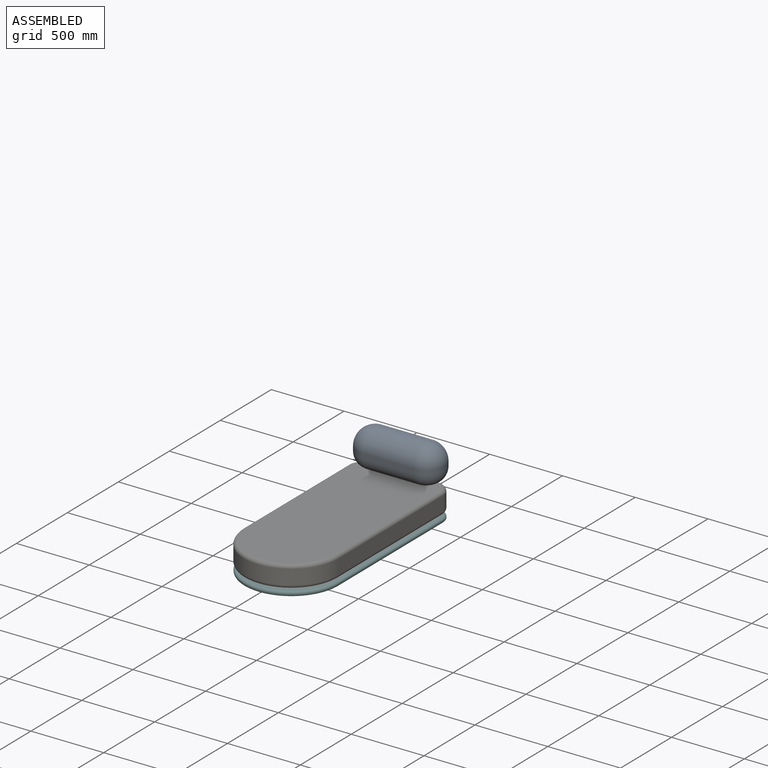
[diagram: assembled view]
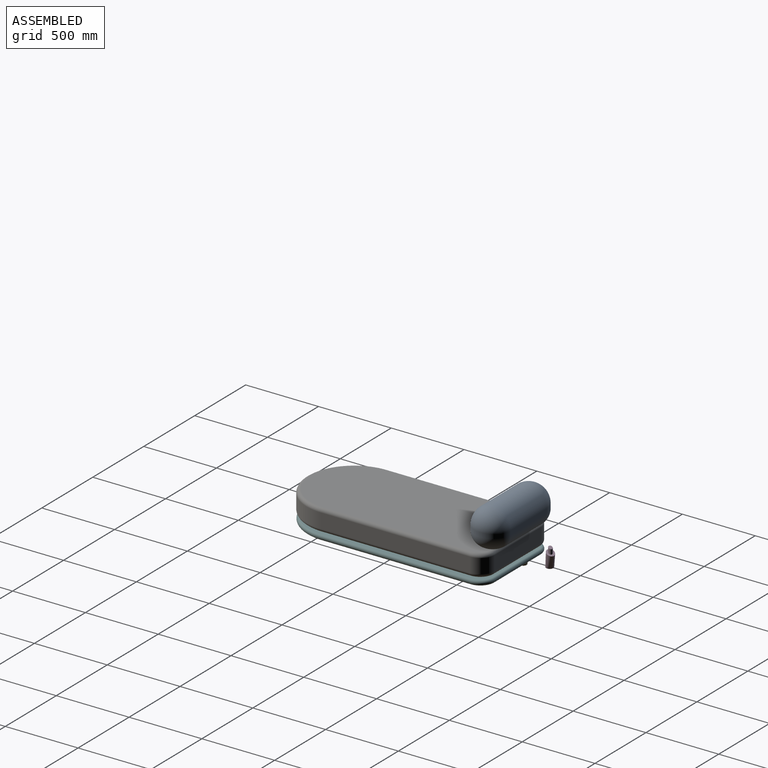
[diagram: assembled view, second angle]
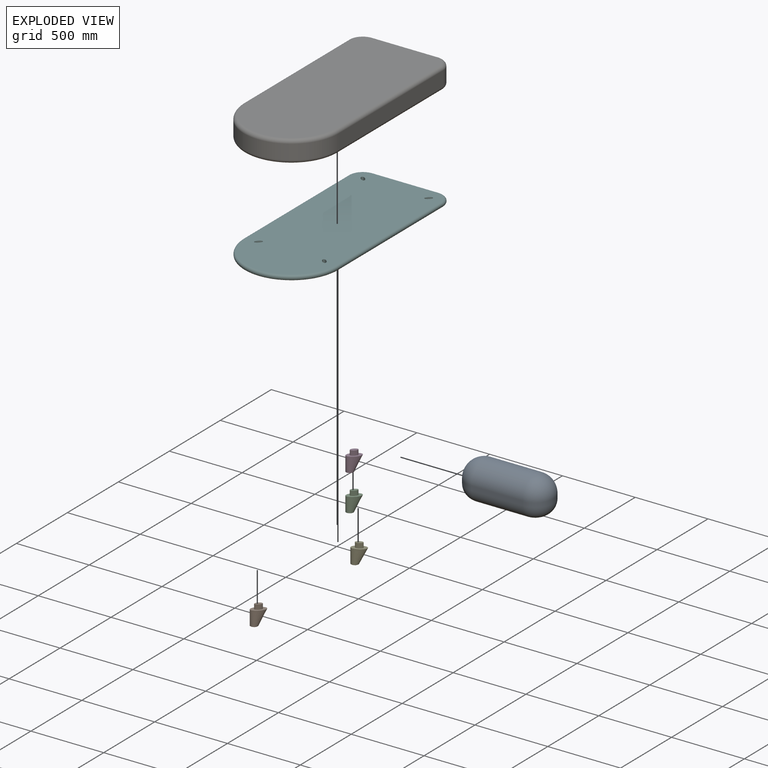
[diagram: exploded view]
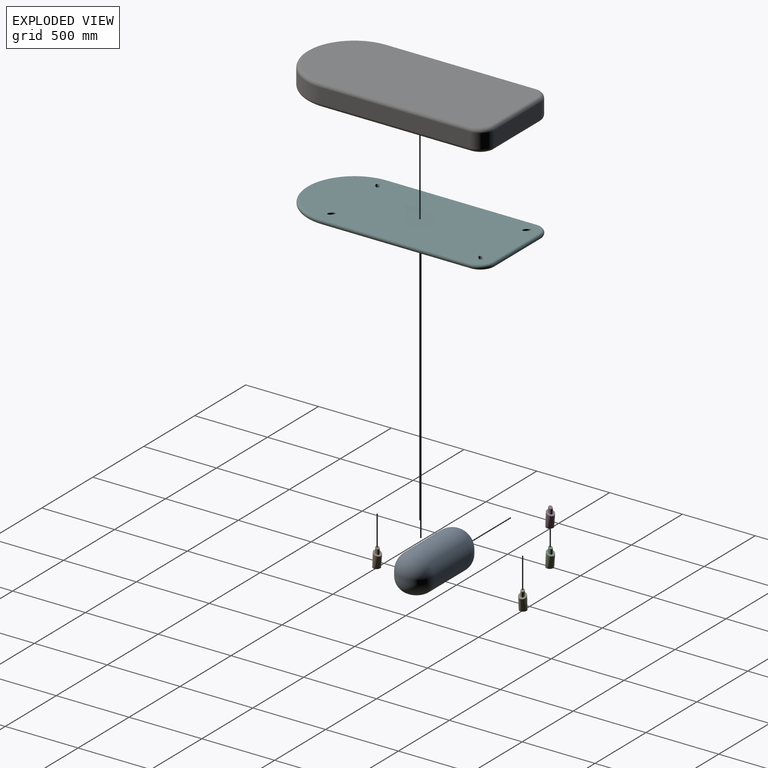
[diagram: exploded view, second angle]
FCSTD DOCUMENT  (FreeCAD 1.0R39319 (Git))
Label: Lounger Unit
License: All rights reserved
objects: App::Link×7, App::FeaturePython×7, Assembly::JointGroup×1, Assembly::AssemblyObject×1
EXTERNAL_REF file=Components.FCStd obj=Body006
EXTERNAL_REF file=Components.FCStd obj=Body007
EXTERNAL_REF file=Components.FCStd obj=Body002
EXTERNAL_REF file=Components.FCStd obj=Body003

FEATURE [App::Link] LoungerBase
  LinkedObject = -> <external Components.FCStd>#Body006
FEATURE [App::FeaturePython] GroundedJoint  label="BaseJoint"  # Assembly grounded joint (typed FeaturePython)
  ObjectToGround = -> LoungerBase
FEATURE [App::Link] LoungerCushion
  LinkPlacement = pos=(0,-1.31383,50) rot=(0,0,1;0rad)
  LinkedObject = -> <external Components.FCStd>#Body007
  Placement = pos=(0,-1.31383,50) rot=(0,0,1;0rad)
FEATURE [App::Link] Backrest
  LinkPlacement = pos=(26,73.6862,200) rot=(0,0,1;0rad)
  LinkedObject = -> <external Components.FCStd>#Body002
  Placement = pos=(26,73.6862,200) rot=(0,0,1;0rad)
FEATURE [App::Link] Legs
  LinkPlacement = pos=(100,-1124,-1.42e-14) rot=(0,0,1;0rad)
  LinkedObject = -> <external Components.FCStd>#Body003
  Placement = pos=(100,-1124,-1.42e-14) rot=(0,0,1;0rad)
FEATURE [App::Link] Legs001
  LinkPlacement = pos=(-17.6777,-17.6777,-33) rot=(0,0,1;0rad)
  LinkedObject = -> <external Components.FCStd>#Body003
  Placement = pos=(-17.6777,-17.6777,-33) rot=(0,0,1;0rad)
FEATURE [App::Link] Legs002
  LinkPlacement = pos=(-17.6777,-17.6777,-33) rot=(0,0,1;0rad)
  LinkedObject = -> <external Components.FCStd>#Body003
  Placement = pos=(-17.6777,-17.6777,-33) rot=(0,0,1;0rad)
FEATURE [App::Link] Legs003
  LinkPlacement = pos=(95.8122,-129.798,-1.75e-14) rot=(0,0,-1;0.279253rad)
  LinkedObject = -> <external Components.FCStd>#Body003
  Placement = pos=(95.8122,-129.798,-1.75e-14) rot=(0,0,-1;0.279253rad)
FEATURE [App::FeaturePython] Joint  label="CushionJoint"  # Assembly joint (typed FeaturePython)
  Activated = true
  AngleMax = 0
  AngleMin = 0
  Detach1 = false
  Detach2 = false
  Distance = 0
  Distance2 = 0
  EnableAngleMax = false
  EnableAngleMin = false
  EnableLengthMax = false
  EnableLengthMin = false
  JointType = 0 (Fixed)
  LengthMax = 0
  LengthMin = 0
  Placement2 = pos=(0,1.31383,-50) rot=(0,0,1;0rad)
  Reference1 = -> Assembly [LoungerBase.?Face11,LoungerBase.?Face11]
  Reference2 = -> Assembly [LoungerCushion.?Face7,LoungerCushion.?Face7]
FEATURE [App::FeaturePython] Joint001  label="BackrestJoint"  # Assembly joint (typed FeaturePython)
  Activated = true
  AngleMax = 0
  AngleMin = 0
  Detach1 = false
  Detach2 = false
  Distance = 0
  Distance2 = 0
  EnableAngleMax = false
  EnableAngleMin = false
  EnableLengthMax = false
  EnableLengthMin = false
  JointType = 0 (Fixed)
  LengthMax = 0
  LengthMin = 0
  Offset2 = pos=(0,0,0) rot=(0,0,1;3.14159rad)
  Placement1 = pos=(326,-25,150) rot=(-0.707107,0,0.707107;3.14159rad)
  Placement2 = pos=(300,-100,5.68e-14) rot=(0,-1,0;4.71239rad)
  Reference1 = -> Assembly [LoungerCushion.Edge30,LoungerCushion.Edge30]
  Reference2 = -> Assembly [Backrest.Edge1,Backrest.Edge1]
FEATURE [App::FeaturePython] Joint002  label="Fixed"  # Assembly joint (typed FeaturePython)
  Activated = true
  AngleMax = 0
  AngleMin = 0
  Detach1 = false
  Detach2 = false
  Distance = 0
  Distance2 = 0
  EnableAngleMax = false
  EnableAngleMin = false
  EnableLengthMax = false
  EnableLengthMin = false
  JointType = 0 (Fixed)
  LengthMax = 0
  LengthMin = 0
  Placement1 = pos=(117.678,-117.678,33) rot=(0,0,1;0rad)
  Placement2 = pos=(17.6777,17.6777,33) rot=(0,0,1;0.279253rad)
  Reference1 = -> Assembly [LoungerBase.Edge39,LoungerBase.Vertex29]
  Reference2 = -> Assembly [Legs003.Edge9,Legs003.Vertex6]
FEATURE [App::FeaturePython] Joint003  label="Fixed001"  # Assembly joint (typed FeaturePython)
  Activated = true
  AngleMax = 0
  AngleMin = 0
  Detach1 = false
  Detach2 = false
  Distance = 0
  Distance2 = 0
  EnableAngleMax = false
  EnableAngleMin = false
  EnableLengthMax = false
  EnableLengthMin = false
  JointType = 0 (Fixed)
  LengthMax = 0
  LengthMin = 0
  Placement2 = pos=(17.6777,17.6777,33) rot=(0,0,1;0rad)
  Reference1 = -> Assembly [LoungerBase.?Edge40,LoungerBase.?Vertex30]
  Reference2 = -> Assembly [Legs002.Edge9,Legs002.Vertex6]
FEATURE [App::FeaturePython] Joint004  label="Fixed002"  # Assembly joint (typed FeaturePython)
  Activated = true
  AngleMax = 0
  AngleMin = 0
  Detach1 = false
  Detach2 = false
  Distance = 0
  Distance2 = 0
  EnableAngleMax = false
  EnableAngleMin = false
  EnableLengthMax = false
  EnableLengthMin = false
  JointType = 0 (Fixed)
  LengthMax = 0
  LengthMin = 0
  Placement2 = pos=(17.6777,17.6777,33) rot=(0,0,1;0rad)
  Reference1 = -> Assembly [LoungerBase.?Edge38,LoungerBase.?Vertex28]
  Reference2 = -> Assembly [Legs001.Edge9,Legs001.Vertex6]
FEATURE [App::FeaturePython] Joint005  label="Fixed003"  # Assembly joint (typed FeaturePython)
  Activated = true
  AngleMax = 0
  AngleMin = 0
  Detach1 = false
  Detach2 = false
  Distance = 0
  Distance2 = 0
  EnableAngleMax = false
  EnableAngleMin = false
  EnableLengthMax = false
  EnableLengthMin = false
  JointType = 0 (Fixed)
  LengthMax = 0
  LengthMin = 0
  Placement1 = pos=(117.678,-1106.32,33) rot=(0,0,1;0rad)
  Placement2 = pos=(17.6777,17.6777,33) rot=(0,0,1;0rad)
  Reference1 = -> Assembly [LoungerBase.Edge37,LoungerBase.Vertex27]
  Reference2 = -> Assembly [Legs.Edge9,Legs.Vertex6]
FEATURE [Assembly::JointGroup] Joints
  Group = -> [GroundedJoint,Joint,Joint001,Joint002,Joint003,Joint004,Joint005]
FEATURE [Assembly::AssemblyObject] Assembly
  Group = -> [Joints,LoungerBase,GroundedJoint,LoungerCushion,Backrest,Legs,Legs001,Legs002,Legs003,Joint,Joint001,Joint002,Joint003,Joint004,Joint005]
  Origin = -> Origin
  Type = Assembly

RESOLVED EXTERNAL PARTS (link-assembly join: the EXTERNAL_REF files above that resolve inside this repo's crawl, each included once):
---- part Components.FCStd = doc fcstd_bfc9eb12b56d ----
FCSTD DOCUMENT  (FreeCAD 1.0R39319 (Git))
Label: Components
License: All rights reserved
objects: Sketcher::SketchObject×17, PartDesign::Pad×12, PartDesign::Body×10, PartDesign::Fillet×7, PartDesign::Pocket×3, PartDesign::Plane×1, App::VarSet×1, PartDesign::AdditiveLoft×1, PartDesign::SubShapeBinder×1
note: 115 computed .brp shape members not serialized (recipe doc carries the construction recipe); baked Part::Feature solids carry a one-line shape summary decoded from their .brp

FEATURE [Sketcher::SketchObject] Sketch
  ArcFitTolerance = 1e-06
  AttachmentSupport = -> [XY_Plane]
  FullyConstrained = true
  MakeInternals = false
  MapMode = 5
  expr: Constraints[21] = VarSet.depth - 2 * VarSet.corner_radious
  expr: Constraints[22] = VarSet.depth - 2 * VarSet.corner_radious
  expr: Constraints[23] = VarSet.singe_width / 2
  expr: Constraints[24] = VarSet.singe_width / 2
  expr: Constraints[27] = VarSet.depth
  expr: Constraints[41] = VarSet.corner_radious
  sketch-geometry (15):
    g0: ArcOfCircle CenterX=1322.94 CenterY=-100 CenterZ=0 NormalX=0 NormalY=0 NormalZ=1 AngleXU=0 Radius=100 StartAngle=1e-16 EndAngle=1.5708
    g1: LineSegment StartX=1422.94 StartY=-100 StartZ=0 EndX=1422.94 EndY=-625 EndZ=0
    g2: ArcOfCircle CenterX=1322.94 CenterY=-625 CenterZ=0 NormalX=0 NormalY=0 NormalZ=1 AngleXU=0 Radius=100 StartAngle=4.71239 EndAngle=6.28319
    g3: LineSegment StartX=1322.94 StartY=-725 StartZ=0 EndX=996.938 EndY=-725 EndZ=0
    g4: ArcOfCircle CenterX=996.938 CenterY=-825 CenterZ=0 NormalX=0 NormalY=0 NormalZ=1 AngleXU=0 Radius=100 StartAngle=1.5708 EndAngle=2.35619
    g5: LineSegment StartX=926.227 StartY=-754.289 StartZ=0 EndX=695.711 EndY=-984.806 EndZ=0
    g6: ArcOfCircle CenterX=625 CenterY=-914.095 CenterZ=0 NormalX=0 NormalY=0 NormalZ=1 AngleXU=0 Radius=100 StartAngle=4.71239 EndAngle=5.49779
    g7: ArcOfCircle CenterX=100 CenterY=-696.633 CenterZ=0 NormalX=0 NormalY=0 NormalZ=1 AngleXU=0 Radius=100 StartAngle=2.35619 EndAngle=3.14159
    g8: LineSegment StartX=29.2893 StartY=-625.923 StartZ=0 EndX=625.923 EndY=-29.2893 EndZ=0
    g9: ArcOfCircle CenterX=696.633 CenterY=-100 CenterZ=0 NormalX=0 NormalY=0 NormalZ=1 AngleXU=0 Radius=100 StartAngle=1.5708 EndAngle=2.35619
    g10: LineSegment StartX=1322.94 StartY=0 StartZ=0 EndX=696.633 EndY=0 EndZ=0
    g11: LineSegment StartX=625 StartY=-1014.1 StartZ=0 EndX=100 EndY=-1014.1 EndZ=0
    g12: ArcOfCircle CenterX=100 CenterY=-914.095 CenterZ=0 NormalX=0 NormalY=0 NormalZ=1 AngleXU=0 Radius=100 StartAngle=3.14159 EndAngle=4.71239
    g13: LineSegment StartX=0 StartY=-914.095 StartZ=0 EndX=0 EndY=-696.633 EndZ=0
    g14: LineSegment [constr] StartX=0 StartY=-655.212 StartZ=0 EndX=655.212 EndY=3.5e-15 EndZ=0
  constraints (42):
    c: Tangent(g0,g1) = 1.5708
    c: Tangent(g1,g2) = 1.5708
    c: Tangent(g2,g3) = 1.5708
    c: Tangent(g3,g4) = -1.5708
    c: Tangent(g4,g5) = -1.5708
    c: Tangent(g5,g6) = 1.5708
    c: Tangent(g7,g8) = 1.5708
    c: Tangent(g8,g9) = 1.5708
    c: Tangent(g10,g0) = -1.5708
    c: Tangent(g9,g10) = -1.5708
    c: Horizontal(g10)
    c: Vertical(g1)
    c: Horizontal(g3)
    c: Angle(g4) = 0.785398
    c: Parallel(g8,g5)
    c: Tangent(g6,g11) = 1.5708
    c: Tangent(g11,g12) = 1.5708
    c: Tangent(g12,g13) = 1.5708
    c: Vertical(g13)
    c: Horizontal(g11)
    c: Tangent(g7,g13) = 1.5708
    c: Distance(g1) = 525
    c: Distance(g11) = 525
    c: Distance(g3) = 326
    c: Distance(g5) = 326
    c: PointOnObject(g9,g-1)
    c: PointOnObject(g7,g-2)
    c: Distance(g4,g8) = 725
    c: PointOnObject(g14,g-2)
    c: PointOnObject(g14,g-1)
    c: PointOnObject(g14,g8)
    c: PointOnObject(g14,g8)
    c: Distance(g14,g-1) = 655.212
    c: Distance(g0,g-2) = 1422.94
    c: Distance(g11,g-1) = 1014.1
    c: Equal(g4,g2)
    c: Equal(g6,g4)
    c: Equal(g7,g6)
    c: Equal(g9,g7)
    c: Equal(g12,g2)
    c: Equal(g0,g2)
    c: Radius(g2) = 100
FEATURE [PartDesign::Pad] Pad
  Direction = (0,0,1)
  Length = 33
  Length2 = 10
  Profile = -> Sketch
  ReferenceAxis = -> Sketch [N_Axis]
  Refine = true
  Suppressed = false
  Type = 0
  expr: Length = VarSet.base_thickness
FEATURE [Sketcher::SketchObject] Sketch001
  ArcFitTolerance = 1e-06
  AttachmentSupport = -> [XY_Plane001]
  FullyConstrained = true
  MakeInternals = false
  MapMode = 5
  expr: Constraints[23] = VarSet.depth - 2 * VarSet.corner_radious
  expr: Constraints[24] = VarSet.singe_width / 2
  expr: Constraints[25] = VarSet.depth
  sketch-geometry (14):
    g0: LineSegment StartX=696.633 StartY=0 StartZ=0 EndX=1322.94 EndY=0 EndZ=0
    g1: ArcOfCircle CenterX=1322.94 CenterY=-100 CenterZ=0 NormalX=0 NormalY=0 NormalZ=1 AngleXU=0 Radius=100 StartAngle=2e-16 EndAngle=1.5708
    g2: LineSegment StartX=1422.94 StartY=-100 StartZ=0 EndX=1422.94 EndY=-625 EndZ=0
    g3: ArcOfCircle CenterX=1322.94 CenterY=-625 CenterZ=0 NormalX=0 NormalY=0 NormalZ=1 AngleXU=0 Radius=100 StartAngle=4.71239 EndAngle=6.28319
    g4: LineSegment StartX=1322.94 StartY=-725 StartZ=0 EndX=996.938 EndY=-725 EndZ=0
    g5: ArcOfCircle CenterX=996.938 CenterY=-825 CenterZ=0 NormalX=0 NormalY=0 NormalZ=1 AngleXU=0 Radius=100 StartAngle=1.5708 EndAngle=2.35619
    g6: LineSegment StartX=926.227 StartY=-754.289 StartZ=0 EndX=695.711 EndY=-984.806 EndZ=0
    g7: ArcOfCircle CenterX=625 CenterY=-914.095 CenterZ=0 NormalX=0 NormalY=0 NormalZ=1 AngleXU=0 Radius=100 StartAngle=4.71239 EndAngle=5.49779
    g8: LineSegment StartX=625 StartY=-1014.1 StartZ=0 EndX=100 EndY=-1014.1 EndZ=0
    g9: ArcOfCircle CenterX=100 CenterY=-914.095 CenterZ=0 NormalX=0 NormalY=0 NormalZ=1 AngleXU=0 Radius=100 StartAngle=3.14159 EndAngle=4.71239
    g10: LineSegment StartX=0 StartY=-914.095 StartZ=0 EndX=0 EndY=-696.633 EndZ=0
    g11: ArcOfCircle CenterX=100 CenterY=-696.633 CenterZ=0 NormalX=0 NormalY=0 NormalZ=1 AngleXU=0 Radius=100 StartAngle=2.35619 EndAngle=3.14159
    g12: LineSegment StartX=29.2893 StartY=-625.923 StartZ=0 EndX=625.923 EndY=-29.2893 EndZ=0
    g13: ArcOfCircle CenterX=696.633 CenterY=-100 CenterZ=0 NormalX=0 NormalY=0 NormalZ=1 AngleXU=0 Radius=100 StartAngle=1.5708 EndAngle=2.35619
  constraints (35):
    c: PointOnObject(g0,g-1)
    c: Horizontal(g0)
    c: Tangent(g0,g1) = 1.5708
    c: Tangent(g1,g2) = 1.5708
    c: Tangent(g2,g3) = 1.5708
    c: Tangent(g3,g4) = 1.5708
    c: Tangent(g4,g5) = -1.5708
    c: Tangent(g5,g6) = -1.5708
    c: Tangent(g6,g7) = 1.5708
    c: Tangent(g7,g8) = 1.5708
    c: Tangent(g8,g9) = 1.5708
    c: Tangent(g9,g10) = 1.5708
    c: Tangent(g10,g11) = 1.5708
    c: Tangent(g11,g12) = 1.5708
    c: Tangent(g12,g13) = 1.5708
    c: Tangent(g13,g0) = 1.5708
    c: Radius(g3) = 100
    c: Horizontal(g4)
    c: Vertical(g2)
    c: Vertical(g10)
    c: Horizontal(g8)
    c: Parallel(g12,g6)
    c: Angle(g5) = 0.785398
    c: Distance(g2) = 525
    c: Distance(g4) = 326
    c: Distance(g5,g12) = 725
    c: PointOnObject(g10,g-2)
    c: Equal(g8,g2)
    c: Equal(g4,g6)
    c: Equal(g3,g1)
    c: Equal(g3,g9)
    c: Equal(g3,g5)
    c: Equal(g5,g7)
    c: Equal(g7,g11)
    c: Equal(g11,g13)
FEATURE [PartDesign::Pad] Pad001
  Direction = (0,0,1)
  Length = 150
  Length2 = 10
  Profile = -> Sketch001
  ReferenceAxis = -> Sketch001 [N_Axis]
  Refine = true
  Suppressed = false
  Type = 0
  expr: Length = VarSet.cushion_thickness
FEATURE [PartDesign::Fillet] Fillet
  Base = -> Pad001
  BaseFeature = -> Pad001
  Radius = 25
  Refine = true
  SupportTransform = false
  Suppressed = false
  UseAllEdges = true
  expr: Radius = VarSet.cushion_fillet
FEATURE [PartDesign::Body] Body001  label="CornerCushion"
  AllowCompound = false
  Group = -> [Sketch001,Pad001,Fillet]
  Origin = -> Origin001
  Placement = pos=(0,0,50) rot=(0,0,1;0rad)
  Tip = -> Fillet
FEATURE [PartDesign::Fillet] Fillet001
  Base = -> Pad [?Face10]
  BaseFeature = -> Pad
  Radius = 16
  Refine = true
  SupportTransform = false
  Suppressed = false
  UseAllEdges = true
  expr: Radius = VarSet.base_fillet
FEATURE [Sketcher::SketchObject] Sketch002
  ArcFitTolerance = 1e-06
  AttachmentSupport = -> [YZ_Plane002]
  FullyConstrained = true
  MakeInternals = false
  MapMode = 5
  Placement = pos=(0,0,0) rot=(0.57735,0.57735,0.57735;2.0944rad)
  expr: Constraints[8] = VarSet.backrest_height - VarSet.backrest_width / 2
  expr: Constraints[9] = VarSet.backrest_width
  sketch-geometry (4):
    g0: LineSegment StartX=0 StartY=0 StartZ=0 EndX=-250 EndY=0 EndZ=0
    g1: LineSegment StartX=-250 StartY=0 StartZ=0 EndX=-250 EndY=130 EndZ=0
    g2: ArcOfCircle CenterX=-125 CenterY=130 CenterZ=0 NormalX=0 NormalY=0 NormalZ=1 AngleXU=0 Radius=125 StartAngle=2e-16 EndAngle=3.14159
    g3: LineSegment StartX=0 StartY=130 StartZ=0 EndX=0 EndY=0 EndZ=0
  constraints (10):
    c: Coincident(g-1,g0)
    c: PointOnObject(g0,g-1)
    c: Coincident(g0,g1)
    c: Vertical(g1)
    c: Tangent(g1,g2) = 1.5708
    c: PointOnObject(g2,g-2)
    c: Tangent(g2,g3) = 1.5708
    c: Coincident(g3,g0)
    c: Distance(g1) = 130
    c: Distance(g0) = 250
FEATURE [PartDesign::Pad] Pad002
  Direction = (1,0,0)
  Length = 600
  Length2 = 10
  Placement = pos=(0,0,0) rot=(1,1,1;2.0944rad)
  Profile = -> Sketch002
  ReferenceAxis = -> Sketch002 [N_Axis]
  Refine = true
  Suppressed = false
  Type = 0
  expr: Length = VarSet.backrest_length
FEATURE [PartDesign::Fillet] Fillet002
  Base = -> Pad002 [Edge10,Edge9]
  BaseFeature = -> Pad002
  Placement = pos=(0,0,0) rot=(1,1,1;2.0944rad)
  Radius = 124.5
  Refine = true
  SupportTransform = false
  Suppressed = false
  UseAllEdges = false
  expr: Radius = (VarSet.backrest_width - 1 mm) / 2
FEATURE [PartDesign::Fillet] Fillet003
  Base = -> Fillet002 [?Face1]
  BaseFeature = -> Fillet002
  Placement = pos=(0,0,0) rot=(1,1,1;2.0944rad)
  Radius = 100
  Refine = true
  SupportTransform = false
  Suppressed = false
  UseAllEdges = true
  expr: Radius = VarSet.backrest_fillet
FEATURE [PartDesign::Body] Body002  label="Backrest"
  AllowCompound = false
  Group = -> [Sketch002,Pad002,Fillet002,Fillet003]
  Origin = -> Origin002
  Placement = pos=(0,-100,200) rot=(0,0,1;0rad)
  Tip = -> Fillet003
FEATURE [Sketcher::SketchObject] Sketch003
  ArcFitTolerance = 1e-06
  AttachmentSupport = -> [XY_Plane003]
  FullyConstrained = true
  MakeInternals = false
  MapMode = 5
  expr: Constraints[4] = VarSet.leg_width
  expr: Constraints[6] = VarSet.leg_width / 2
  sketch-geometry (5):
    g0: Ellipse CenterX=0 CenterY=0 CenterZ=0 NormalX=0 NormalY=0 NormalZ=1 MajorRadius=50 MinorRadius=25 AngleXU=-2.35619
    g1: LineSegment [constr] StartX=-35.3553 StartY=-35.3553 StartZ=0 EndX=35.3553 EndY=35.3553 EndZ=0
    g2: LineSegment [constr] StartX=17.6777 StartY=-17.6777 StartZ=0 EndX=-17.6777 EndY=17.6777 EndZ=0
    g3: GeomPoint [constr] X=-30.6186 Y=-30.6186 Z=0
    g4: GeomPoint [constr] X=30.6186 Y=30.6186 Z=0
  constraints (5):
    c: InternalAlignment(g1-g4 -> g0) x4
    c: Distance(g0,g1) = 50
    c: Angle(g1) = 0.785398
    c: Distance(g0,g2) = 25
    c: Coincident(g0,g-1)
FEATURE [PartDesign::Plane] DatumPlane
  AttachmentOffset = pos=(0,0,-100) rot=(0,0,1;0rad)
  AttachmentSupport = -> [Sketch003]
  Length = 98.636
  MapMode = 2
  Placement = pos=(0,0,-100) rot=(0,0,1;0rad)
  ResizeMode = 0
  Width = 98.6418
  expr: .AttachmentOffset.Base.z = -VarSet.leg_height
FEATURE [Sketcher::SketchObject] Sketch004
  ArcFitTolerance = 1e-06
  AttachmentSupport = -> [DatumPlane]
  FullyConstrained = true
  MakeInternals = false
  MapMode = 5
  Placement = pos=(0,0,-100) rot=(0,0,1;0rad)
  expr: Constraints[0] = VarSet.leg_width
  sketch-geometry (2):
    g0: Circle CenterX=-17.6777 CenterY=-17.6777 CenterZ=0 NormalX=0 NormalY=0 NormalZ=1 AngleXU=0 Radius=25
    g1: LineSegment [constr] StartX=-17.6777 StartY=-17.6777 StartZ=0 EndX=2.4e-15 EndY=4.5e-15 EndZ=0
  constraints (5):
    c: Diameter(g0) = 50
    c: Coincident(g1,g0)
    c: Coincident(g1,g-1)
    c: Angle(g1,g-1) = 2.35619
    c: PointOnObject(g1,g0)
FEATURE [App::VarSet] VarSet
  backrest_fillet = 100
  backrest_height = 255
  backrest_length = 600
  backrest_width = 250
  base_fillet = 16
  base_thickness = 33
  corner_radious = 100
  cushion_fillet = 25
  cushion_thickness = 150
  depth = 725
  leg_height = 100
  leg_width = 50
  singe_width = 652
  spacer_width = 222
FEATURE [Sketcher::SketchObject] Sketch005
  ArcFitTolerance = 1e-06
  AttachmentSupport = -> [XY_Plane006]
  FullyConstrained = true
  MakeInternals = false
  MapMode = 5
  expr: Constraints[19] = VarSet.singe_width
  expr: Constraints[20] = VarSet.depth
  expr: Constraints[21] = VarSet.corner_radious
  sketch-geometry (10):
    g0: LineSegment StartX=0 StartY=-100 StartZ=0 EndX=0 EndY=-625 EndZ=0
    g1: LineSegment StartX=100 StartY=-725 StartZ=0 EndX=552 EndY=-725 EndZ=0
    g2: LineSegment StartX=652 StartY=-625 StartZ=0 EndX=652 EndY=-100 EndZ=0
    g3: LineSegment StartX=552 StartY=0 StartZ=0 EndX=100 EndY=0 EndZ=0
    g4: ArcOfCircle CenterX=100 CenterY=-100 CenterZ=0 NormalX=0 NormalY=0 NormalZ=1 AngleXU=0 Radius=100 StartAngle=1.5708 EndAngle=3.14159
    g5: ArcOfCircle CenterX=100 CenterY=-625 CenterZ=0 NormalX=0 NormalY=0 NormalZ=1 AngleXU=0 Radius=100 StartAngle=3.14159 EndAngle=4.71239
    g6: ArcOfCircle CenterX=552 CenterY=-625 CenterZ=0 NormalX=0 NormalY=0 NormalZ=1 AngleXU=0 Radius=100 StartAngle=4.71239 EndAngle=6.28319
    g7: ArcOfCircle CenterX=552 CenterY=-100 CenterZ=0 NormalX=0 NormalY=0 NormalZ=1 AngleXU=0 Radius=100 StartAngle=0 EndAngle=1.5708
    g8: GeomPoint [constr] X=0 Y=0 Z=0
    g9: GeomPoint [constr] X=652 Y=-725 Z=0
  constraints (23):
    c: Tangent(g0,g4) = -1.5708
    c: Tangent(g0,g5) = -1.5708
    c: Tangent(g1,g5) = -1.5708
    c: Tangent(g1,g6) = -1.5708
    c: Tangent(g2,g6) = -1.5708
    c: Tangent(g2,g7) = -1.5708
    c: Tangent(g3,g7) = -1.5708
    c: Tangent(g3,g4) = -1.5708
    c: Vertical(g0)
    c: Vertical(g2)
    c: Horizontal(g1)
    c: Horizontal(g3)
    c: Equal(g4,g5)
    c: Equal(g5,g6)
    c: Equal(g6,g7)
    c: PointOnObject(g8,g0)
    c: PointOnObject(g8,g3)
    c: PointOnObject(g9,g1)
    c: PointOnObject(g9,g2)
    c: Distance(g0,g2) = 652
    c: Distance(g1,g3) = 725
    c: Radius(g5) = 100
    c: Coincident(g8,g-1)
FEATURE [Sketcher::SketchObject] Sketch006
  ArcFitTolerance = 1e-06
  AttachmentSupport = -> [XY_Plane007]
  FullyConstrained = true
  MakeInternals = false
  MapMode = 5
  expr: Constraints[19] = VarSet.singe_width
  expr: Constraints[20] = VarSet.depth
  expr: Constraints[21] = VarSet.corner_radious
  sketch-geometry (10):
    g0: LineSegment StartX=0 StartY=-100 StartZ=0 EndX=0 EndY=-625 EndZ=0
    g1: LineSegment StartX=100 StartY=-725 StartZ=0 EndX=552 EndY=-725 EndZ=0
    g2: LineSegment StartX=652 StartY=-625 StartZ=0 EndX=652 EndY=-100 EndZ=0
    g3: LineSegment StartX=552 StartY=0 StartZ=0 EndX=100 EndY=0 EndZ=0
    g4: ArcOfCircle CenterX=100 CenterY=-100 CenterZ=0 NormalX=0 NormalY=0 NormalZ=1 AngleXU=0 Radius=100 StartAngle=1.5708 EndAngle=3.14159
    g5: ArcOfCircle CenterX=100 CenterY=-625 CenterZ=0 NormalX=0 NormalY=0 NormalZ=1 AngleXU=0 Radius=100 StartAngle=3.14159 EndAngle=4.71239
    g6: ArcOfCircle CenterX=552 CenterY=-625 CenterZ=0 NormalX=0 NormalY=0 NormalZ=1 AngleXU=0 Radius=100 StartAngle=4.71239 EndAngle=6.28319
    g7: ArcOfCircle CenterX=552 CenterY=-100 CenterZ=0 NormalX=0 NormalY=0 NormalZ=1 AngleXU=0 Radius=100 StartAngle=0 EndAngle=1.5708
    g8: GeomPoint [constr] X=0 Y=0 Z=0
    g9: GeomPoint [constr] X=652 Y=-725 Z=0
  constraints (23):
    c: Tangent(g0,g4) = -1.5708
    c: Tangent(g0,g5) = -1.5708
    c: Tangent(g1,g5) = -1.5708
    c: Tangent(g1,g6) = -1.5708
    c: Tangent(g2,g6) = -1.5708
    c: Tangent(g2,g7) = -1.5708
    c: Tangent(g3,g7) = -1.5708
    c: Tangent(g3,g4) = -1.5708
    c: Vertical(g0)
    c: Vertical(g2)
    c: Horizontal(g1)
    c: Horizontal(g3)
    c: Equal(g4,g5)
    c: Equal(g5,g6)
    c: Equal(g6,g7)
    c: PointOnObject(g8,g0)
    c: PointOnObject(g8,g3)
    c: PointOnObject(g9,g1)
    c: PointOnObject(g9,g2)
    c: Distance(g0,g2) = 652
    c: Distance(g1,g3) = 725
    c: Radius(g5) = 100
    c: Coincident(g8,g-1)
FEATURE [Sketcher::SketchObject] Sketch007
  ArcFitTolerance = 1e-06
  AttachmentSupport = -> [XY_Plane013]
  FullyConstrained = true
  MakeInternals = false
  MapMode = 5
  expr: Constraints[12] = VarSet.depth * 2 - VarSet.singe_width / 2
  expr: Constraints[13] = VarSet.singe_width
  expr: Constraints[8] = VarSet.corner_radious
  sketch-geometry (6):
    g0: LineSegment StartX=100 StartY=0 StartZ=0 EndX=552 EndY=0 EndZ=0
    g1: ArcOfCircle CenterX=552 CenterY=-100 CenterZ=0 NormalX=0 NormalY=0 NormalZ=1 AngleXU=0 Radius=100 StartAngle=2e-16 EndAngle=1.5708
    g2: LineSegment StartX=652 StartY=-100 StartZ=0 EndX=652 EndY=-1124 EndZ=0
    g3: ArcOfCircle CenterX=326 CenterY=-1124 CenterZ=0 NormalX=0 NormalY=0 NormalZ=1 AngleXU=0 Radius=326 StartAngle=3.14159 EndAngle=6.28319
    g4: LineSegment StartX=0 StartY=-1124 StartZ=0 EndX=0 EndY=-100 EndZ=0
    g5: ArcOfCircle CenterX=100 CenterY=-100 CenterZ=0 NormalX=0 NormalY=0 NormalZ=1 AngleXU=0 Radius=100 StartAngle=1.5708 EndAngle=3.14159
  constraints (15):
    c: PointOnObject(g0,g-1)
    c: Horizontal(g0)
    c: Tangent(g0,g1) = 1.5708
    c: Tangent(g1,g2) = 1.5708
    c: Tangent(g2,g3) = 1.5708
    c: PointOnObject(g3,g-2)
    c: Tangent(g3,g4) = 1.5708
    c: Tangent(g4,g5) = 1.5708
    c: Radius(g5) = 100
    c: Vertical(g4)
    c: Vertical(g2)
    c: Tangent(g5,g0) = 1.5708
    c: DistanceY(g2,g0) = 1124
    c: Distance(g4,g1) = 652
    c: Equal(g1,g5)
FEATURE [Sketcher::SketchObject] Sketch008
  ArcFitTolerance = 1e-06
  AttachmentSupport = -> [XY_Plane014]
  FullyConstrained = true
  MakeInternals = false
  MapMode = 5
  expr: Constraints[15] = VarSet.depth * 2 - VarSet.singe_width / 2
  expr: Constraints[9] = VarSet.singe_width
  sketch-geometry (7):
    g0: LineSegment StartX=0 StartY=-100 StartZ=0 EndX=0 EndY=-1124 EndZ=0
    g1: LineSegment StartX=652 StartY=-1124 StartZ=0 EndX=652 EndY=-100 EndZ=0
    g2: LineSegment StartX=552 StartY=0 StartZ=0 EndX=100 EndY=0 EndZ=0
    g3: ArcOfCircle CenterX=100 CenterY=-100 CenterZ=0 NormalX=0 NormalY=0 NormalZ=1 AngleXU=0 Radius=100 StartAngle=1.5708 EndAngle=3.14159
    g4: ArcOfCircle CenterX=552 CenterY=-100 CenterZ=0 NormalX=0 NormalY=0 NormalZ=1 AngleXU=0 Radius=100 StartAngle=0 EndAngle=1.5708
    g5: GeomPoint [constr] X=0 Y=0 Z=0
    g6: ArcOfCircle CenterX=326 CenterY=-1124 CenterZ=0 NormalX=0 NormalY=0 NormalZ=1 AngleXU=0 Radius=326 StartAngle=3.14159 EndAngle=6.28319
  constraints (16):
    c: Tangent(g0,g3) = -1.5708
    c: Tangent(g1,g4) = -1.5708
    c: Tangent(g2,g4) = -1.5708
    c: Tangent(g2,g3) = -1.5708
    c: Vertical(g0)
    c: Vertical(g1)
    c: Horizontal(g2)
    c: PointOnObject(g5,g0)
    c: PointOnObject(g5,g2)
    c: Distance(g0,g1) = 652
    c: Coincident(g5,g-1)
    c: Tangent(g6,g1) = -1.5708
    c: Tangent(g6,g0) = -1.5708
    c: Radius(g4) = 100
    c: Radius(g3) = 100
    c: DistanceY(g1,g2) = 1124
FEATURE [PartDesign::Pad] Pad006
  Direction = (0,0,1)
  Length = 150
  Length2 = 10
  Profile = -> Sketch008
  ReferenceAxis = -> Sketch008 [N_Axis]
  Refine = true
  Suppressed = false
  Type = 0
  expr: Length = VarSet.cushion_thickness
FEATURE [PartDesign::Pad] Pad003
  Direction = (0,0,1)
  Length = 33
  Length2 = 10
  Profile = -> Sketch005
  ReferenceAxis = -> Sketch005 [N_Axis]
  Refine = true
  Suppressed = false
  Type = 0
  expr: Length = VarSet.base_thickness
FEATURE [PartDesign::Pad] Pad004
  Direction = (0,0,1)
  Length = 150
  Length2 = 10
  Profile = -> Sketch006
  ReferenceAxis = -> Sketch006 [N_Axis]
  Refine = true
  Suppressed = false
  Type = 0
  expr: Length = VarSet.cushion_thickness
FEATURE [PartDesign::Fillet] Fillet004
  Base = -> Pad004 [Edge16,Edge19,Edge22,Edge24,Edge4,Edge7,Edge10,Edge13,Edge21,Edge23,Edge3,Edge6,Edge9,Edge12,Edge15,Edge18]
  BaseFeature = -> Pad004
  Radius = 25
  Refine = true
  SupportTransform = false
  Suppressed = false
  UseAllEdges = false
  expr: Radius = VarSet.cushion_fillet
FEATURE [PartDesign::Body] Body005  label="SingleCushion"
  AllowCompound = false
  Group = -> [Sketch006,Pad004,Fillet004]
  Origin = -> Origin007
  Placement = pos=(0,0,50) rot=(0,0,1;0rad)
  Tip = -> Fillet004
FEATURE [PartDesign::Pad] Pad005
  Direction = (0,0,1)
  Length = 33
  Length2 = 10
  Profile = -> Sketch007
  ReferenceAxis = -> Sketch007 [N_Axis]
  Refine = true
  Suppressed = false
  Type = 0
  expr: Length = VarSet.base_thickness
FEATURE [PartDesign::Fillet] Fillet007
  Base = -> Pad005 [?Face10]
  BaseFeature = -> Pad005
  Radius = 16
  Refine = true
  SupportTransform = false
  Suppressed = false
  UseAllEdges = true
  expr: Radius = VarSet.base_fillet
FEATURE [PartDesign::AdditiveLoft] AdditiveLoft
  Closed = false
  Placement = pos=(0,0,-100) rot=(0,0,1;0rad)
  Profile = -> Sketch004
  Refine = true
  Ruled = false
  Sections = -> [Sketch003]
  Suppressed = false
FEATURE [Sketcher::SketchObject] Sketch009
  ArcFitTolerance = 1e-06
  AttachmentSupport = -> [AdditiveLoft]
  FullyConstrained = true
  MakeInternals = false
  MapMode = 5
  Placement = pos=(0,0,1.42e-14) rot=(0,0,1;0rad)
  expr: Constraints[4] = VarSet.leg_width / 2
  expr: Constraints[6] = VarSet.leg_width / 4
  sketch-geometry (5):
    g0: Ellipse CenterX=0 CenterY=0 CenterZ=0 NormalX=0 NormalY=0 NormalZ=1 MajorRadius=25 MinorRadius=12.5 AngleXU=0.785399
    g1: LineSegment [constr] StartX=17.6777 StartY=17.6777 StartZ=0 EndX=-17.6777 EndY=-17.6777 EndZ=0
    g2: LineSegment [constr] StartX=-8.83884 StartY=8.83883 StartZ=0 EndX=8.83884 EndY=-8.83883 EndZ=0
    g3: GeomPoint [constr] X=15.3093 Y=15.3093 Z=0
    g4: GeomPoint [constr] X=-15.3093 Y=-15.3093 Z=0
  constraints (5):
    c: InternalAlignment(g1-g4 -> g0) x4
    c: Distance(g0,g1) = 25
    c: Angle(g1) = -2.35619
    c: Distance(g0,g2) = 12.5
    c: Coincident(g0,g-1)
FEATURE [PartDesign::Pad] Pad007
  BaseFeature = -> AdditiveLoft
  Direction = (0,0,1)
  Length = 33
  Length2 = 10
  Placement = pos=(0,0,-100) rot=(0,0,1;0rad)
  Profile = -> Sketch009
  ReferenceAxis = -> Sketch009 [N_Axis]
  Refine = true
  Suppressed = false
  Type = 0
  expr: Length = VarSet.base_thickness
FEATURE [PartDesign::Body] Body003  label="Legs"
  AllowCompound = false
  Group = -> [Sketch003,DatumPlane,Sketch004,AdditiveLoft,Sketch009,Pad007]
  Origin = -> Origin003
  Placement = pos=(100,-100,0) rot=(0,0,1;-1.5708rad)
  Tip = -> Pad007
FEATURE [Sketcher::SketchObject] Sketch010
  ArcFitTolerance = 1e-06
  AttachmentSupport = -> [Pad003]
  ExternalGeometry = -> [Pad003]
  FullyConstrained = true
  MakeInternals = false
  MapMode = 5
  Placement = pos=(0,0,0) rot=(1,0,0;3.14159rad)
  sketch-geometry (20):
    g0: Ellipse CenterX=100 CenterY=625 CenterZ=0 NormalX=0 NormalY=0 NormalZ=1 MajorRadius=25 MinorRadius=12.5 AngleXU=2.35619
    g1: LineSegment [constr] StartX=82.3223 StartY=642.678 StartZ=0 EndX=117.678 EndY=607.322 EndZ=0
    g2: LineSegment [constr] StartX=91.1612 StartY=616.161 StartZ=0 EndX=108.839 EndY=633.839 EndZ=0
    g3: GeomPoint [constr] X=84.6907 Y=640.309 Z=0
    g4: GeomPoint [constr] X=115.309 Y=609.691 Z=0
    g5: Ellipse CenterX=552 CenterY=625 CenterZ=0 NormalX=0 NormalY=0 NormalZ=1 MajorRadius=25 MinorRadius=12.5 AngleXU=-2.35619
    g6: LineSegment [constr] StartX=534.322 StartY=607.322 StartZ=0 EndX=569.678 EndY=642.678 EndZ=0
    g7: LineSegment [constr] StartX=560.839 StartY=616.161 StartZ=0 EndX=543.161 EndY=633.839 EndZ=0
    g8: GeomPoint [constr] X=536.691 Y=609.691 Z=0
    g9: GeomPoint [constr] X=567.309 Y=640.309 Z=0
    g10: Ellipse CenterX=552 CenterY=100 CenterZ=0 NormalX=0 NormalY=0 NormalZ=1 MajorRadius=25 MinorRadius=12.5 AngleXU=2.35619
    g11: LineSegment [constr] StartX=534.322 StartY=117.678 StartZ=0 EndX=569.678 EndY=82.3223 EndZ=0
    g12: LineSegment [constr] StartX=543.161 StartY=91.1612 StartZ=0 EndX=560.839 EndY=108.839 EndZ=0
    g13: GeomPoint [constr] X=536.691 Y=115.309 Z=0
    g14: GeomPoint [constr] X=567.309 Y=84.6907 Z=0
    g15: Ellipse CenterX=100 CenterY=100 CenterZ=0 NormalX=0 NormalY=0 NormalZ=1 MajorRadius=25 MinorRadius=12.5 AngleXU=0.785398
    g16: LineSegment [constr] StartX=117.678 StartY=117.678 StartZ=0 EndX=82.3223 EndY=82.3223 EndZ=0
    g17: LineSegment [constr] StartX=91.1612 StartY=108.839 StartZ=0 EndX=108.839 EndY=91.1612 EndZ=0
    g18: GeomPoint [constr] X=115.309 Y=115.309 Z=0
    g19: GeomPoint [constr] X=84.6907 Y=84.6907 Z=0
  constraints (20):
    c: InternalAlignment(g1-g4 -> g0) x4
    c: Distance(g0,g1) = 25
    c: Angle(g1) = -0.785398
    c: Distance(g0,g2) = 12.5
    c: Coincident(g0,g-6)
    c: InternalAlignment(g6-g9 -> g5) x4
    c: Coincident(g5,g-3)
    c: InternalAlignment(g11-g14 -> g10) x4
    c: Coincident(g10,g-5)
    c: InternalAlignment(g16-g19 -> g15) x4
    c: Coincident(g15,g-4)
    c: Equal(g2,g7)
    c: Equal(g1,g6)
    c: Equal(g12,g7)
    c: Equal(g11,g6)
    c: Equal(g16,g1)
    c: Equal(g2,g17)
    c: Angle(g6,g-1) = 2.35619
    c: Angle(g11,g-1) = 0.785398
    c: Angle(g16,g-1) = 2.35619
FEATURE [PartDesign::Pocket] Pocket
  BaseFeature = -> Pad003
  Direction = (0,0,1)
  Length = 0
  Length2 = 5
  Profile = -> Sketch010
  ReferenceAxis = -> Sketch010 [N_Axis]
  Refine = true
  Suppressed = false
  Type = 1
FEATURE [PartDesign::Body] Body004  label="SingleBase"
  AllowCompound = false
  Group = -> [Sketch005,Pad003,Sketch010,Pocket]
  Origin = -> Origin006
  Tip = -> Pocket
FEATURE [Sketcher::SketchObject] Sketch011
  ArcFitTolerance = 1e-06
  AttachmentSupport = -> [Fillet001]
  ExternalGeometry = -> [Fillet001]
  FullyConstrained = true
  MakeInternals = false
  MapMode = 5
  Placement = pos=(0,0,0) rot=(1,0,0;3.14159rad)
  expr: Constraints[34] = VarSet.leg_width / 2
  expr: Constraints[35] = VarSet.leg_width
  sketch-geometry (34):
    g0: Ellipse CenterX=100 CenterY=914.095 CenterZ=0 NormalX=0 NormalY=0 NormalZ=1 MajorRadius=25 MinorRadius=12.5 AngleXU=-0.785398
    g1: LineSegment [constr] StartX=117.678 StartY=896.418 StartZ=0 EndX=82.3223 EndY=931.773 EndZ=0
    g2: LineSegment [constr] StartX=108.839 StartY=922.934 StartZ=0 EndX=91.1612 EndY=905.257 EndZ=0
    g3: GeomPoint [constr] X=115.309 Y=898.786 Z=0
    g4: GeomPoint [constr] X=84.6907 Y=929.405 Z=0
    g5: Ellipse CenterX=625 CenterY=914.095 CenterZ=0 NormalX=0 NormalY=0 NormalZ=1 MajorRadius=25 MinorRadius=12.5 AngleXU=0.785398
    g6: LineSegment [constr] StartX=642.678 StartY=931.773 StartZ=0 EndX=607.322 EndY=896.418 EndZ=0
    g7: LineSegment [constr] StartX=616.161 StartY=922.934 StartZ=0 EndX=633.839 EndY=905.257 EndZ=0
    g8: GeomPoint [constr] X=640.309 Y=929.405 Z=0
    g9: GeomPoint [constr] X=609.691 Y=898.786 Z=0
    g10: Ellipse CenterX=1322.94 CenterY=100 CenterZ=0 NormalX=0 NormalY=0 NormalZ=1 MajorRadius=25 MinorRadius=12.5 AngleXU=-0.785398
    g11: LineSegment [constr] StartX=1340.62 StartY=82.3223 StartZ=0 EndX=1305.26 EndY=117.678 EndZ=0
    g12: LineSegment [constr] StartX=1331.78 StartY=108.839 StartZ=0 EndX=1314.1 EndY=91.1612 EndZ=0
    g13: GeomPoint [constr] X=1338.25 Y=84.6907 Z=0
    g14: GeomPoint [constr] X=1307.63 Y=115.309 Z=0
    g15: Ellipse CenterX=1322.94 CenterY=625 CenterZ=0 NormalX=0 NormalY=0 NormalZ=1 MajorRadius=25 MinorRadius=12.5 AngleXU=0.785398
    g16: LineSegment [constr] StartX=1340.62 StartY=642.678 StartZ=0 EndX=1305.26 EndY=607.322 EndZ=0
    g17: LineSegment [constr] StartX=1314.1 StartY=633.839 StartZ=0 EndX=1331.78 EndY=616.161 EndZ=0
    g18: GeomPoint [constr] X=1338.25 Y=640.309 Z=0
    g19: GeomPoint [constr] X=1307.63 Y=609.691 Z=0
    g20: Ellipse CenterX=696.633 CenterY=100 CenterZ=0 NormalX=0 NormalY=0 NormalZ=1 MajorRadius=25 MinorRadius=12.5 AngleXU=-2.35619
    g21: LineSegment [constr] StartX=678.956 StartY=82.3223 StartZ=0 EndX=714.311 EndY=117.678 EndZ=0
    g22: LineSegment [constr] StartX=705.472 StartY=91.1612 StartZ=0 EndX=687.794 EndY=108.839 EndZ=0
    g23: GeomPoint [constr] X=681.324 Y=84.6907 Z=0
    g24: GeomPoint [constr] X=711.943 Y=115.309 Z=0
    g25: Ellipse CenterX=100 CenterY=696.633 CenterZ=0 NormalX=0 NormalY=0 NormalZ=1 MajorRadius=25 MinorRadius=12.5 AngleXU=0.911738
    g26: LineSegment [constr] StartX=115.309 StartY=716.398 StartZ=0 EndX=84.6907 EndY=676.869 EndZ=0
    g27: LineSegment [constr] StartX=90.1179 StartY=704.288 StartZ=0 EndX=109.882 EndY=688.979 EndZ=0
    g28: GeomPoint [constr] X=113.258 Y=713.75 Z=0
    g29: GeomPoint [constr] X=86.7417 Y=679.517 Z=0
    g30: LineSegment [constr] StartX=100 StartY=998.095 StartZ=0 EndX=82.3223 EndY=931.773 EndZ=0
    g31: LineSegment [constr] StartX=82.3223 StartY=931.773 StartZ=0 EndX=16 EndY=914.095 EndZ=0
    g32: LineSegment [constr] StartX=1340.62 StartY=82.3223 StartZ=0 EndX=1406.94 EndY=100 EndZ=0
    g33: LineSegment [constr] StartX=1340.62 StartY=82.3223 StartZ=0 EndX=1322.94 EndY=16 EndZ=0
  constraints (38):
    c: InternalAlignment(g1-g4 -> g0) x4
    c: InternalAlignment(g6-g9 -> g5) x4
    c: InternalAlignment(g11-g14 -> g10) x4
    c: InternalAlignment(g16-g19 -> g15) x4
    c: InternalAlignment(g21-g24 -> g20) x4
    c: InternalAlignment(g26-g29 -> g25) x4
    c: Equal(g1,g26)
    c: Equal(g1,g6)
    c: Equal(g1,g11)
    c: Equal(g1,g16)
    c: Equal(g1,g21)
    c: Equal(g2,g27)
    c: Equal(g2,g7)
    c: Equal(g2,g12)
    c: Equal(g2,g17)
    c: Equal(g2,g22)
    c: Distance(g2) = 25
    c: Distance(g1) = 50
    c: Coincident(g0,g-3)
    c: Coincident(g5,g-4)
    c: Coincident(g25,g-8)
    c: Coincident(g20,g-7)
    c: Coincident(g10,g-6)
    c: Coincident(g15,g-5)
    c: Coincident(g30,g-3)
    c: Coincident(g30,g1)
    c: Coincident(g31,g1)
    c: Coincident(g31,g-3)
    c: Equal(g30,g31)
    c: Coincident(g32,g11)
    c: Coincident(g32,g-6)
    c: Coincident(g33,g11)
    c: Coincident(g33,g-6)
    c: Equal(g33,g32)
    c: Horizontal(g6,g1)
    c: Vertical(g4,g26)
    c: Vertical(g11,g16)
    c: Horizontal(g11,g21)
FEATURE [PartDesign::Pocket] Pocket001
  BaseFeature = -> Fillet001
  Direction = (0,0,1)
  Length = 5
  Length2 = 5
  Profile = -> Sketch011
  ReferenceAxis = -> Sketch011 [N_Axis]
  Refine = true
  Suppressed = false
  Type = 1
FEATURE [PartDesign::Body] Body  label="CornerBase"
  AllowCompound = false
  Group = -> [Sketch,Pad,Fillet001,Sketch011,Pocket001]
  Origin = -> Origin
  Tip = -> Pocket001
FEATURE [Sketcher::SketchObject] Sketch012
  ArcFitTolerance = 1e-06
  AttachmentSupport = -> [Fillet007]
  ExternalGeometry = -> [Fillet007]
  FullyConstrained = true
  MakeInternals = false
  MapMode = 5
  Placement = pos=(0,0,0) rot=(1,0,0;3.14159rad)
  expr: Constraints[22] = VarSet.leg_width
  expr: Constraints[23] = VarSet.leg_width / 2
  sketch-geometry (22):
    g0: Ellipse CenterX=100 CenterY=100 CenterZ=0 NormalX=0 NormalY=0 NormalZ=1 MajorRadius=25 MinorRadius=12.5 AngleXU=0.785398
    g1: LineSegment [constr] StartX=117.678 StartY=117.678 StartZ=0 EndX=82.3223 EndY=82.3223 EndZ=0
    g2: LineSegment [constr] StartX=91.1612 StartY=108.839 StartZ=0 EndX=108.839 EndY=91.1612 EndZ=0
    g3: GeomPoint [constr] X=115.309 Y=115.309 Z=0
    g4: GeomPoint [constr] X=84.6907 Y=84.6907 Z=0
    g5: Ellipse CenterX=100 CenterY=1124 CenterZ=0 NormalX=0 NormalY=0 NormalZ=1 MajorRadius=25 MinorRadius=12.5 AngleXU=-0.785398
    g6: LineSegment [constr] StartX=117.678 StartY=1106.32 StartZ=0 EndX=82.3223 EndY=1141.68 EndZ=0
    g7: LineSegment [constr] StartX=108.839 StartY=1132.84 StartZ=0 EndX=91.1612 EndY=1115.16 EndZ=0
    g8: GeomPoint [constr] X=115.309 Y=1108.69 Z=0
    g9: GeomPoint [constr] X=84.6907 Y=1139.31 Z=0
    g10: Ellipse CenterX=552 CenterY=1124 CenterZ=0 NormalX=0 NormalY=0 NormalZ=1 MajorRadius=25 MinorRadius=12.5 AngleXU=-2.35619
    g11: LineSegment [constr] StartX=534.322 StartY=1106.32 StartZ=0 EndX=569.678 EndY=1141.68 EndZ=0
    g12: LineSegment [constr] StartX=560.839 StartY=1115.16 StartZ=0 EndX=543.161 EndY=1132.84 EndZ=0
    g13: GeomPoint [constr] X=536.691 Y=1108.69 Z=0
    g14: GeomPoint [constr] X=567.309 Y=1139.31 Z=0
    g15: Ellipse CenterX=552 CenterY=100 CenterZ=0 NormalX=0 NormalY=0 NormalZ=1 MajorRadius=25 MinorRadius=12.5 AngleXU=2.35619
    g16: LineSegment [constr] StartX=534.322 StartY=117.678 StartZ=0 EndX=569.678 EndY=82.3223 EndZ=0
    g17: LineSegment [constr] StartX=543.161 StartY=91.1612 StartZ=0 EndX=560.839 EndY=108.839 EndZ=0
    g18: GeomPoint [constr] X=536.691 Y=115.309 Z=0
    g19: GeomPoint [constr] X=567.309 Y=84.6907 Z=0
    g20: LineSegment [constr] StartX=16 StartY=100 StartZ=0 EndX=82.3223 EndY=82.3223 EndZ=0
    g21: LineSegment [constr] StartX=100 StartY=16 StartZ=0 EndX=82.3223 EndY=82.3223 EndZ=0
  constraints (26):
    c: InternalAlignment(g1-g4 -> g0) x4
    c: InternalAlignment(g6-g9 -> g5) x4
    c: InternalAlignment(g11-g14 -> g10) x4
    c: InternalAlignment(g16-g19 -> g15) x4
    c: Equal(g1,g16)
    c: Equal(g1,g6)
    c: Equal(g1,g11)
    c: Equal(g2,g17)
    c: Equal(g2,g7)
    c: Equal(g2,g12)
    c: Distance(g1) = 50
    c: Distance(g2) = 25
    c: Coincident(g0,g-3)
    c: Coincident(g-4,g15)
    c: Horizontal(g5,g-5)
    c: Horizontal(g-5,g10)
    c: Vertical(g15,g10)
    c: Vertical(g0,g5)
    c: Vertical(g6,g1)
    c: Vertical(g11,g16)
    c: Horizontal(g16,g1)
    c: Coincident(g20,g-3)
    c: Coincident(g20,g1)
    c: Coincident(g21,g-3)
    c: Coincident(g21,g1)
    c: Equal(g20,g21)
FEATURE [PartDesign::Fillet] Fillet008
  Base = -> Pad006 [Edge1,Edge2,Edge3,Edge4,Edge5,Edge6,Edge7,Edge8,Edge9,Edge10,Edge11,Edge12,Edge13,Edge14,Edge15,Edge16,Edge17,Edge18]
  BaseFeature = -> Pad006
  Radius = 25
  Refine = true
  SupportTransform = false
  Suppressed = false
  UseAllEdges = true
  expr: Radius = VarSet.cushion_fillet
FEATURE [PartDesign::Body] Body007  label="LoungerCushion"
  AllowCompound = false
  Group = -> [Sketch008,Pad006,Fillet008]
  Origin = -> Origin014
  Placement = pos=(0,0,50) rot=(0,0,1;0rad)
  Tip = -> Fillet008
FEATURE [PartDesign::Pocket] Pocket002
  BaseFeature = -> Fillet007
  Direction = (0,0,1)
  Length = 5
  Length2 = 5
  Profile = -> Sketch012
  ReferenceAxis = -> Sketch012 [N_Axis]
  Refine = true
  Suppressed = false
  Type = 1
FEATURE [PartDesign::Body] Body006  label="LoungerBase"
  AllowCompound = false
  Group = -> [Sketch007,Pad005,Fillet007,Sketch012,Pocket002]
  Origin = -> Origin013
  Tip = -> Pocket002
FEATURE [PartDesign::SubShapeBinder] Binder
  BindCopyOnChange = 0
  BindMode = 0
  ClaimChildren = false
  Context = -> Body008 [Binder.]
  Fuse = false
  MakeFace = true
  OffsetFill = false
  OffsetIntersection = false
  OffsetJoinType = 0
  OffsetOpenResult = false
  PartialLoad = false
  Refine = true
  Relative = true
  Support = -> [Body[Sketch.]]
  _Version = 2
FEATURE [Sketcher::SketchObject] Sketch013
  ArcFitTolerance = 1e-06
  AttachmentSupport = -> [Binder]
  ExternalGeometry = -> [Binder]
  FullyConstrained = true
  MakeInternals = false
  MapMode = 5
  sketch-geometry (3):
    g0: LineSegment StartX=0 StartY=0 StartZ=0 EndX=655.212 EndY=3.5e-15 EndZ=0
    g1: LineSegment StartX=0 StartY=0 StartZ=0 EndX=0 EndY=-655.212 EndZ=0
    g2: LineSegment StartX=0 StartY=-655.212 StartZ=0 EndX=655.212 EndY=3.5e-15 EndZ=0
  constraints (8):
    c: Coincident(g0,g-1)
    c: PointOnObject(g0,g-1)
    c: Coincident(g1,g0)
    c: PointOnObject(g1,g-2)
    c: PointOnObject(g0,g-3)
    c: PointOnObject(g1,g-3)
    c: Coincident(g2,g1)
    c: Coincident(g2,g0)
FEATURE [PartDesign::Pad] Pad008
  Direction = (0,0,1)
  Length = 142
  Length2 = 10
  Profile = -> Sketch013
  ReferenceAxis = -> Sketch013 [N_Axis]
  Refine = true
  Suppressed = false
  Type = 0
  expr: Length = VarSet.base_thickness + VarSet.cushion_thickness - VarSet.base_fillet - VarSet.cushion_fillet
FEATURE [Sketcher::SketchObject] Sketch014
  ArcFitTolerance = 1e-06
  AttachmentSupport = -> [Pad008]
  ExternalGeometry = -> [Pad008]
  FullyConstrained = true
  MakeInternals = false
  MapMode = 5
  Placement = pos=(0,0,0) rot=(1,0,0;3.14159rad)
  expr: Constraints[19] = VarSet.corner_radious
  expr: Constraints[20] = VarSet.leg_width
  sketch-geometry (7):
    g0: Circle CenterX=100 CenterY=413.791 CenterZ=0 NormalX=0 NormalY=0 NormalZ=1 AngleXU=0 Radius=25
    g1: Circle CenterX=413.791 CenterY=100 CenterZ=0 NormalX=0 NormalY=0 NormalZ=1 AngleXU=0 Radius=25
    g2: Circle CenterX=100 CenterY=100 CenterZ=0 NormalX=0 NormalY=0 NormalZ=1 AngleXU=0 Radius=25
    g3: LineSegment [constr] StartX=100 StartY=100 StartZ=0 EndX=0 EndY=100 EndZ=0
    g4: LineSegment [constr] StartX=100 StartY=100 StartZ=0 EndX=100 EndY=0 EndZ=0
    g5: LineSegment [constr] StartX=100 StartY=413.791 StartZ=0 EndX=170.711 EndY=484.501 EndZ=0
    g6: LineSegment [constr] StartX=413.791 StartY=100 StartZ=0 EndX=484.501 EndY=170.711 EndZ=0
  constraints (21):
    c: Equal(g2,g0)
    c: Equal(g2,g1)
    c: Vertical(g0,g2)
    c: Horizontal(g2,g1)
    c: Coincident(g3,g2)
    c: PointOnObject(g3,g-2)
    c: Horizontal(g3)
    c: Coincident(g4,g2)
    c: PointOnObject(g4,g-1)
    c: Coincident(g5,g0)
    c: PointOnObject(g5,g-3)
    c: Coincident(g6,g1)
    c: PointOnObject(g6,g-3)
    c: Perpendicular(g-3,g5)
    c: Perpendicular(g-3,g6)
    c: Perpendicular(g-1,g4)
    c: Equal(g4,g6)
    c: Equal(g3,g5)
    c: Equal(g3,g4)
    c: Distance(g3) = 100
    c: Diameter(g2) = 50
FEATURE [PartDesign::Pad] Pad009
  BaseFeature = -> Pad008
  Direction = (0,0,-1)
  Length = 116
  Length2 = 10
  Profile = -> Sketch014
  ReferenceAxis = -> Sketch014 [N_Axis]
  Refine = true
  Suppressed = false
  Type = 0
  expr: Length = VarSet.leg_height + VarSet.base_fillet
FEATURE [PartDesign::Body] Body008  label="CornerSpacer"
  AllowCompound = false
  Group = -> [Binder,Sketch013,Pad008,Sketch014,Pad009]
  Origin = -> Origin015
  Tip = -> Pad009
FEATURE [Sketcher::SketchObject] Sketch015
  ArcFitTolerance = 1e-06
  AttachmentSupport = -> [XY_Plane016]
  FullyConstrained = true
  MakeInternals = false
  MapMode = 5
  expr: Constraints[20] = VarSet.corner_radious
  expr: Constraints[21] = VarSet.spacer_width
  expr: Constraints[22] = VarSet.depth
  sketch-geometry (10):
    g0: LineSegment StartX=0 StartY=-100 StartZ=0 EndX=0 EndY=-625 EndZ=0
    g1: LineSegment StartX=100 StartY=-725 StartZ=0 EndX=122 EndY=-725 EndZ=0
    g2: LineSegment StartX=222 StartY=-625 StartZ=0 EndX=222 EndY=-100 EndZ=0
    g3: LineSegment StartX=122 StartY=0 StartZ=0 EndX=100 EndY=0 EndZ=0
    g4: ArcOfCircle CenterX=100 CenterY=-100 CenterZ=0 NormalX=0 NormalY=0 NormalZ=1 AngleXU=0 Radius=100 StartAngle=1.5708 EndAngle=3.14159
    g5: ArcOfCircle CenterX=100 CenterY=-625 CenterZ=0 NormalX=0 NormalY=0 NormalZ=1 AngleXU=0 Radius=100 StartAngle=3.14159 EndAngle=4.71239
    g6: ArcOfCircle CenterX=122 CenterY=-625 CenterZ=0 NormalX=0 NormalY=0 NormalZ=1 AngleXU=0 Radius=100 StartAngle=4.71239 EndAngle=6.28319
    g7: ArcOfCircle CenterX=122 CenterY=-100 CenterZ=0 NormalX=0 NormalY=0 NormalZ=1 AngleXU=0 Radius=100 StartAngle=0 EndAngle=1.5708
    g8: GeomPoint [constr] X=0 Y=0 Z=0
    g9: GeomPoint [constr] X=222 Y=-725 Z=0
  constraints (23):
    c: Tangent(g0,g4) = -1.5708
    c: Tangent(g0,g5) = -1.5708
    c: Tangent(g1,g5) = -1.5708
    c: Tangent(g1,g6) = -1.5708
    c: Tangent(g2,g6) = -1.5708
    c: Tangent(g2,g7) = -1.5708
    c: Tangent(g3,g7) = -1.5708
    c: Tangent(g3,g4) = -1.5708
    c: Vertical(g0)
    c: Vertical(g2)
    c: Horizontal(g1)
    c: Horizontal(g3)
    c: Equal(g4,g5)
    c: Equal(g5,g6)
    c: Equal(g6,g7)
    c: PointOnObject(g8,g0)
    c: PointOnObject(g8,g3)
    c: PointOnObject(g9,g1)
    c: PointOnObject(g9,g2)
    c: Coincident(g8,g-1)
    c: Radius(g4) = 100
    c: Distance(g0,g2) = 222
    c: Distance(g3,g1) = 725
FEATURE [PartDesign::Pad] Pad010
  Direction = (0,0,1)
  Length = 142
  Length2 = 10
  Profile = -> Sketch015
  ReferenceAxis = -> Sketch015 [N_Axis]
  Refine = true
  Suppressed = false
  Type = 0
  expr: Length = VarSet.base_thickness + VarSet.cushion_thickness - VarSet.base_fillet - VarSet.cushion_fillet
FEATURE [Sketcher::SketchObject] Sketch016
  ArcFitTolerance = 1e-06
  AttachmentSupport = -> [Pad010]
  ExternalGeometry = -> [Pad010]
  FullyConstrained = true
  MakeInternals = false
  MapMode = 5
  Placement = pos=(0,0,0) rot=(1,0,0;3.14159rad)
  expr: Constraints[15] = VarSet.leg_width
  sketch-geometry (8):
    g0: ArcOfCircle CenterX=100 CenterY=625 CenterZ=0 NormalX=0 NormalY=0 NormalZ=1 AngleXU=0 Radius=25 StartAngle=1.5708 EndAngle=4.71239
    g1: ArcOfCircle CenterX=122 CenterY=625 CenterZ=0 NormalX=0 NormalY=0 NormalZ=1 AngleXU=0 Radius=25 StartAngle=4.71239 EndAngle=7.85398
    g2: LineSegment StartX=100 StartY=650 StartZ=0 EndX=122 EndY=650 EndZ=0
    g3: LineSegment StartX=100 StartY=600 StartZ=0 EndX=122 EndY=600 EndZ=0
    g4: ArcOfCircle CenterX=100 CenterY=100 CenterZ=0 NormalX=0 NormalY=0 NormalZ=1 AngleXU=0 Radius=25 StartAngle=1.5708 EndAngle=4.71239
    g5: ArcOfCircle CenterX=122 CenterY=100 CenterZ=0 NormalX=0 NormalY=0 NormalZ=1 AngleXU=0 Radius=25 StartAngle=4.71239 EndAngle=7.85398
    g6: LineSegment StartX=100 StartY=125 StartZ=0 EndX=122 EndY=125 EndZ=0
    g7: LineSegment StartX=100 StartY=75 StartZ=0 EndX=122 EndY=75 EndZ=0
  constraints (16):
    c: Tangent(g0,g2) = 1.5708
    c: Tangent(g0,g3) = -1.5708
    c: Tangent(g1,g2) = 1.5708
    c: Tangent(g1,g3) = -1.5708
    c: Equal(g0,g1)
    c: Tangent(g4,g6) = 1.5708
    c: Tangent(g4,g7) = -1.5708
    c: Tangent(g5,g6) = 1.5708
    c: Tangent(g5,g7) = -1.5708
    c: Equal(g4,g5)
    c: Equal(g1,g5)
    c: Coincident(g1,g-5)
    c: Coincident(g0,g-6)
    c: Coincident(g5,g-4)
    c: Coincident(g4,g-3)
    c: Diameter(g1) = 50
FEATURE [PartDesign::Pad] Pad011
  BaseFeature = -> Pad010
  Direction = (0,0,-1)
  Length = 116
  Length2 = 10
  Profile = -> Sketch016
  ReferenceAxis = -> Sketch016 [N_Axis]
  Refine = true
  Suppressed = false
  Type = 0
  expr: Length = VarSet.leg_height + VarSet.base_fillet
FEATURE [PartDesign::Body] Body009  label="MiddleSpacer"
  AllowCompound = false
  Group = -> [Sketch015,Pad010,Sketch016,Pad011]
  Origin = -> Origin016
  Tip = -> Pad011
